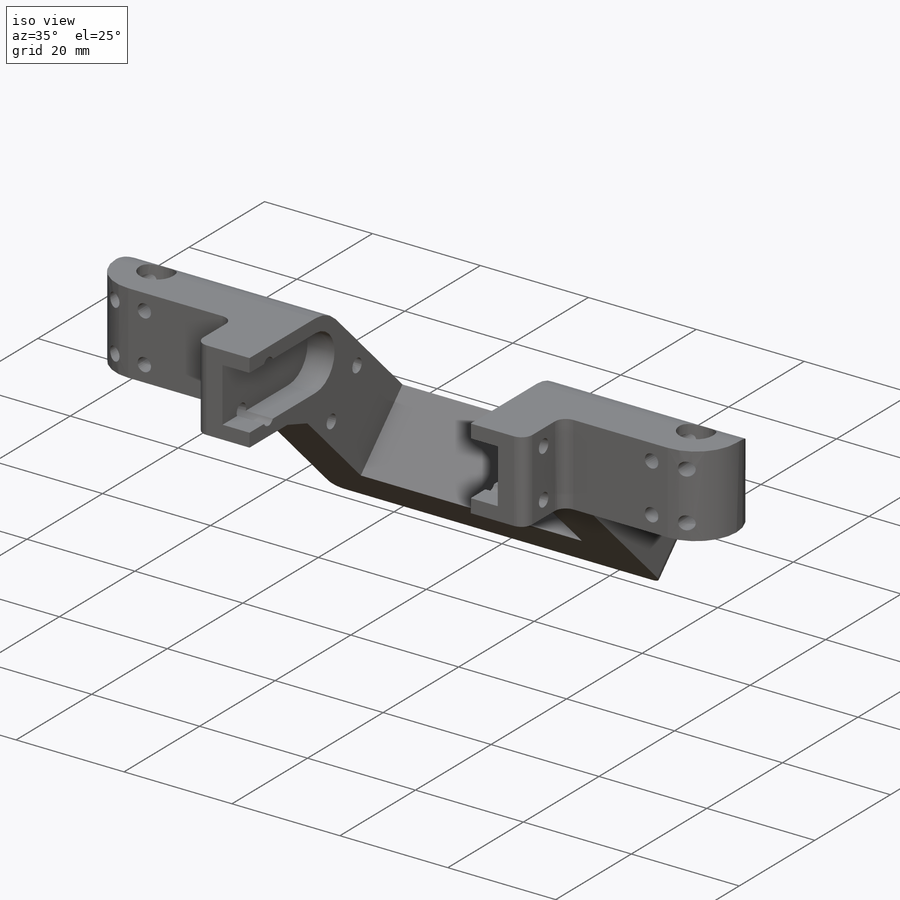
[diagram: iso view]
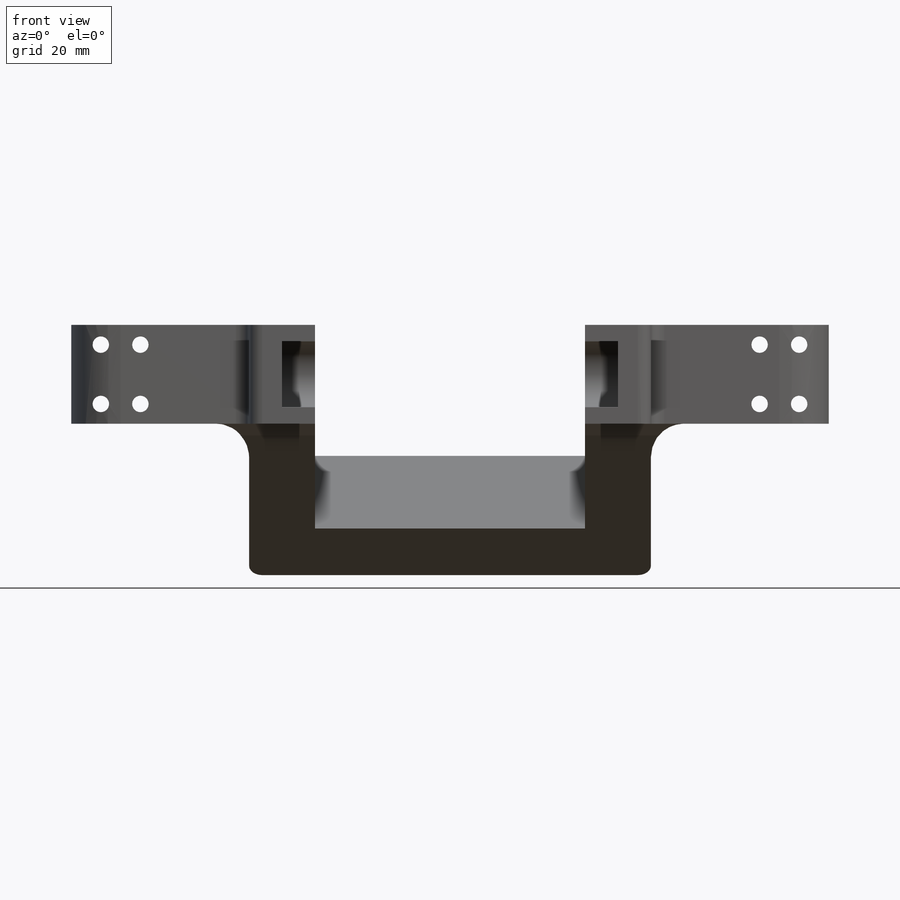
[diagram: front view]
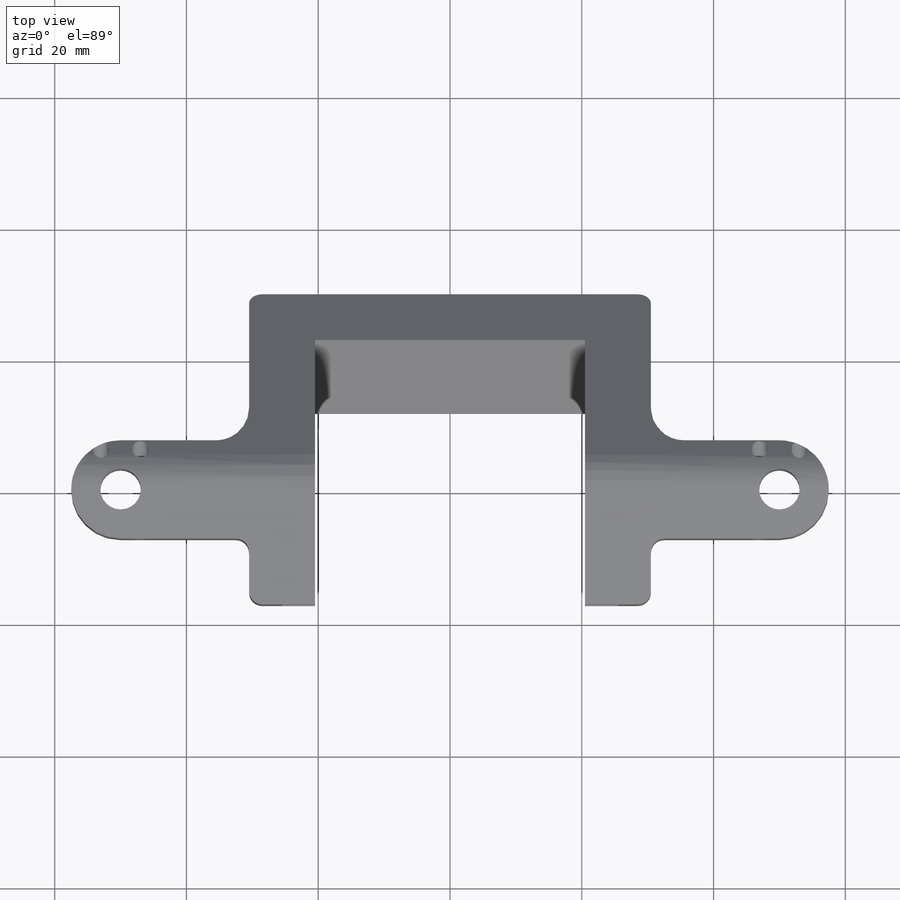
[diagram: top view]
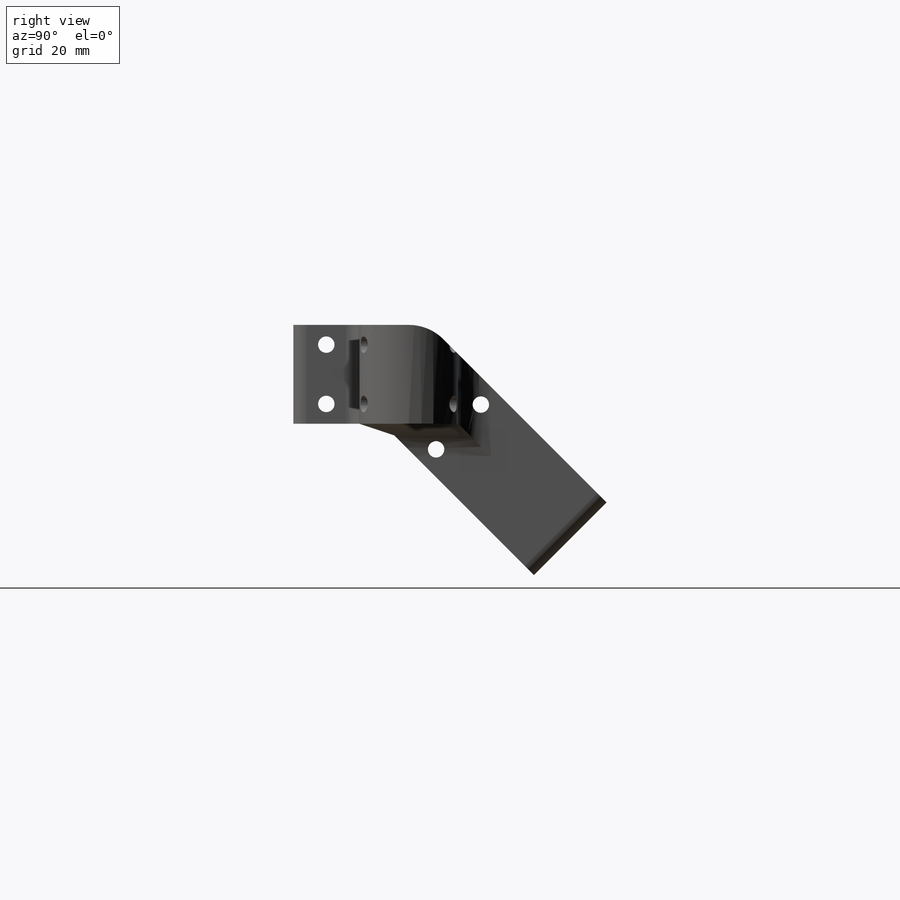
[diagram: right view]
SOLIDWORKS PART (.sldprt)
format: sldprt  version: not decoded by parser v0  size: 619,520 bytes
history: native  units: mm
features: sketch x18, cut_extrude x9, extrude x3, hole x3, plane x2, fillet x2, material x1 (+11 scaffold rows collapsed)
feature tree (49):
  scaffold x11  (default folders/planes/origin — collapsed)
  material  "Material <not specified>"
  sketch  "Sketch2"  dims[D1=100.0mm D2=15.0mm]
  extrude  "Boss-Extrude1"  Depth=15mm
  plane  "Plane1"
  sketch  "Sketch3"  dims[D1=30.5mm D2=30.5mm]
  extrude  "Boss-Extrude2"  Depth=35mm
  sketch  "Sketch4"  dims[D1=41.0mm]
  cut_extrude  "Cut-Extrude1"  Depth=15mm
  sketch  "Sketch5"
  cut_extrude  "Cut-Extrude2"  Depth=25mm
  sketch  "Sketch9"  dims[D1=10.0mm D2=10.0mm]
  extrude  "Boss-Extrude3"  Depth=10mm
  sketch  "Sketch6"  dims[D1=10.0mm D2=10.0mm D3=10.0mm D4=10.0mm]
  cut_extrude  "Cut-Extrude3"  Depth=7.5mm
  sketch  "Sketch7"
  cut_extrude  "Cut-Extrude4"  Depth=5mm
  sketch  "Sketch8"
  cut_extrude  "Cut-Extrude5"  Depth=5mm
  sketch  "Sketch11"  dims[D1=6.15mm D2=6.15mm]
  cut_extrude  "Cut-Extrude6"  [1 undecoded]
  sketch  "Sketch17"  dims[D1=4.0mm]
  cut_extrude  "Cut-Extrude13"  [1 undecoded]
  sketch  "Sketch18"
  cut_extrude  "Cut-Extrude14"  [1 undecoded]
  sketch  "Sketch12"  dims[D1=2.5mm D2=2.5mm D3=30.0mm D4=30.0mm]
  cut_extrude  "Cut-Extrude9"  [1 undecoded]
  fillet  "Fillet2"  Radius=2mm
  hole  "Tap Drill for M3x0.5 Tap1"  Diameter=2.5mm Depth=88mm
  sketch  "3DSketch1"  dims[D1=3.0mm D2=3.0mm D3=3.0mm D4=3.0mm]
  sketch  "Sketch19"  dims[hole-wizard template sketch: 60 standard entries collapsed; hole parameters kept: c18.Thru Hole Depth=88.0mm]
  hole  "Tap Drill for M3x0.5 Tap2"  Diameter=2.5mm Depth=88mm
  sketch  "3DSketch2"  dims[D1=3.0mm D2=3.0mm D3=22.0mm D4=22.0mm]
  sketch  "Sketch21"  dims[hole-wizard template sketch: 60 standard entries collapsed; hole parameters kept: c18.Thru Hole Depth=88.0mm]
  fillet  "Fillet3"  Radius=5mm
  plane  "Plane2"
  hole  "Tap Drill for M3x0.5 Tap3"  Diameter=2.5mm Depth=20.35mm
  sketch  "Sketch25"  dims[D1=3.0mm D2=3.0mm D3=3.0mm D4=3.0mm D5=3.0mm D6=3.0mm D7=3.0mm D8=3.0mm D9=3.0mm D10=3.0mm D11=3.0mm D12=3.0mm D13=3.0mm D14=3.0mm D15=3.0mm D16=3.0mm D17=3.0mm]
  sketch  "Sketch24"  dims[hole-wizard template sketch: 47 standard entries collapsed; hole parameters kept: c15.Hole Depth=20.35mm c15.D3=~14.816244mm c15.Drill Angle=118.0deg]
decode coverage: 27 of 35 modeling features carry decoded parameters
note: ~ marks probable driven/reference dimensions
note: 4 parameter values undecoded
summary: no parameter record found for 4 features
note: suppression state not decoded; provenance and decode notes live in map.json
